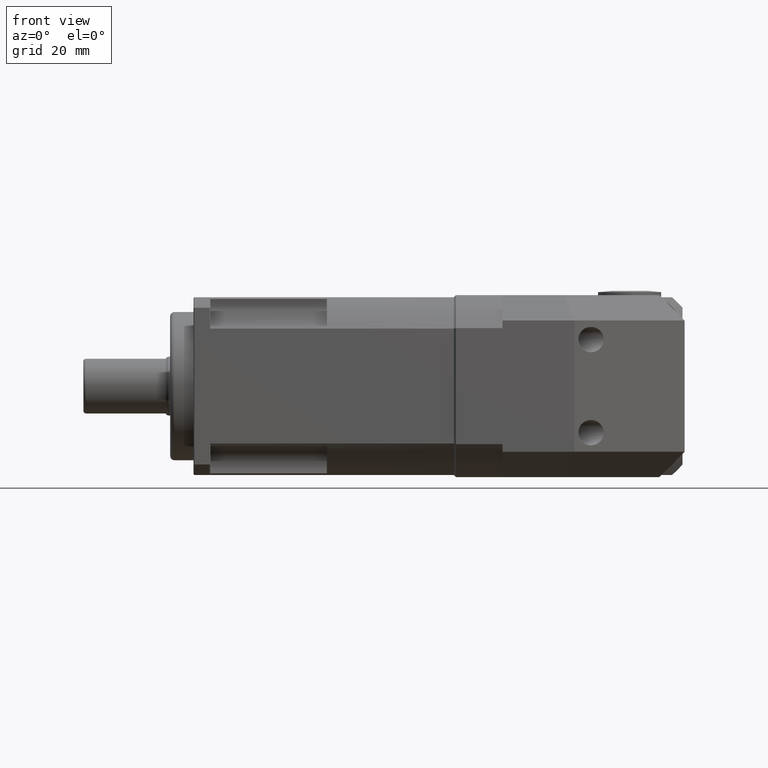
[diagram: clean part render]
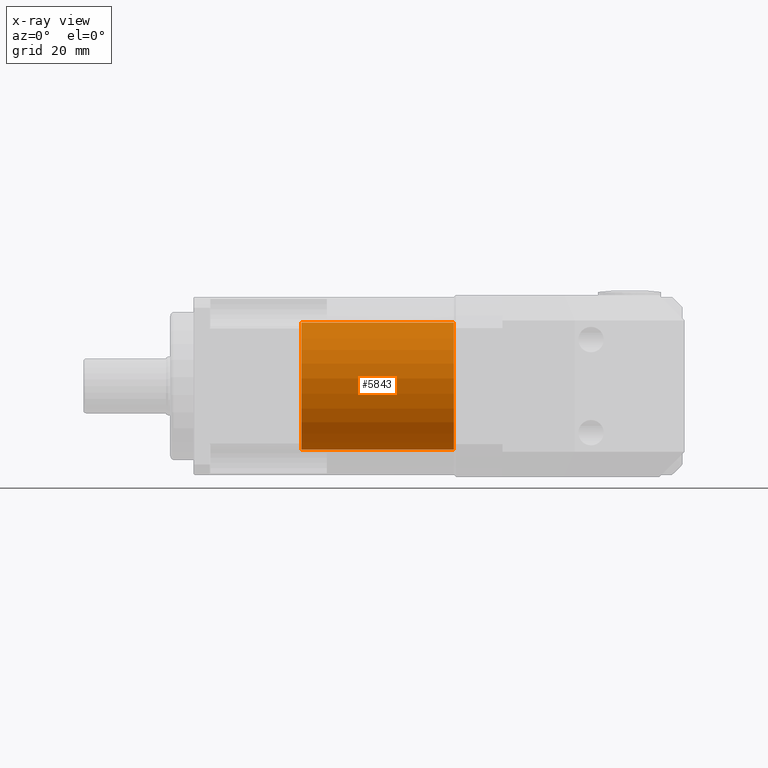
[diagram: x-ray — body ghosted, one internal face saturated and labeled with its STEP entity id]
A machine part, front view, then the same camera in x-ray: the body is ghosted and one INTERNAL B-rep face — a face not visible from any outside direction — is saturated and labeled: STEP entity #5843.
In plain terms, the highlighted cylindrical surface (bore or boss wall) has radius 15 mm, axis along (-1, -0, 0).
Its self-contained STEP definition (entity closure, byte-faithful):
#898=FACE_BOUND('',#1595,.T.);
#1078=CYLINDRICAL_SURFACE('',#6275,15.);
#1184=FACE_OUTER_BOUND('',#1594,.T.);
#1594=EDGE_LOOP('',(#3818));
#1595=EDGE_LOOP('',(#3819));
#2177=CIRCLE('',#6274,15.);
#2178=CIRCLE('',#6276,15.);
#2495=VERTEX_POINT('',#8803);
#2496=VERTEX_POINT('',#8806);
#3041=EDGE_CURVE('',#2495,#2495,#2177,.T.);
#3042=EDGE_CURVE('',#2496,#2496,#2178,.T.);
#3818=ORIENTED_EDGE('',*,*,#3042,.F.);
#3819=ORIENTED_EDGE('',*,*,#3041,.T.);
#5843=ADVANCED_FACE('',(#1184,#898),#1078,.F.);
#6274=AXIS2_PLACEMENT_3D('',#8804,#7023,#7024);
#6275=AXIS2_PLACEMENT_3D('',#8805,#7025,#7026);
#6276=AXIS2_PLACEMENT_3D('',#8807,#7027,#7028);
#7023=DIRECTION('center_axis',(-1.,-3.3874418421801E-16,1.95737501449167E-17));
#7024=DIRECTION('ref_axis',(1.95737501449173E-17,-1.71997832643101E-15,
1.));
#7025=DIRECTION('center_axis',(-1.,-3.3874418421801E-16,1.95737501449167E-17));
#7026=DIRECTION('ref_axis',(1.95737501449173E-17,-1.71997832643101E-15,
1.));
#7027=DIRECTION('center_axis',(-1.,1.01733569921149E-16,-2.46113125889832E-16));
#7028=DIRECTION('ref_axis',(-2.46113125889832E-16,-1.47683655010147E-15,
1.));
#8803=CARTESIAN_POINT('',(-8.30821350474039,6.05267846509058,-19.5713600451766));
#8804=CARTESIAN_POINT('Origin',(-8.30821350474039,6.05267846509055,-4.5713600451766));
#8805=CARTESIAN_POINT('Origin',(-2.30821350474039,6.05267846509056,-4.5713600451766));
#8806=CARTESIAN_POINT('',(27.6917864952593,6.05267846509059,-19.5713600451766));
#8807=CARTESIAN_POINT('Origin',(27.6917864952593,6.05267846509057,-4.5713600451766));